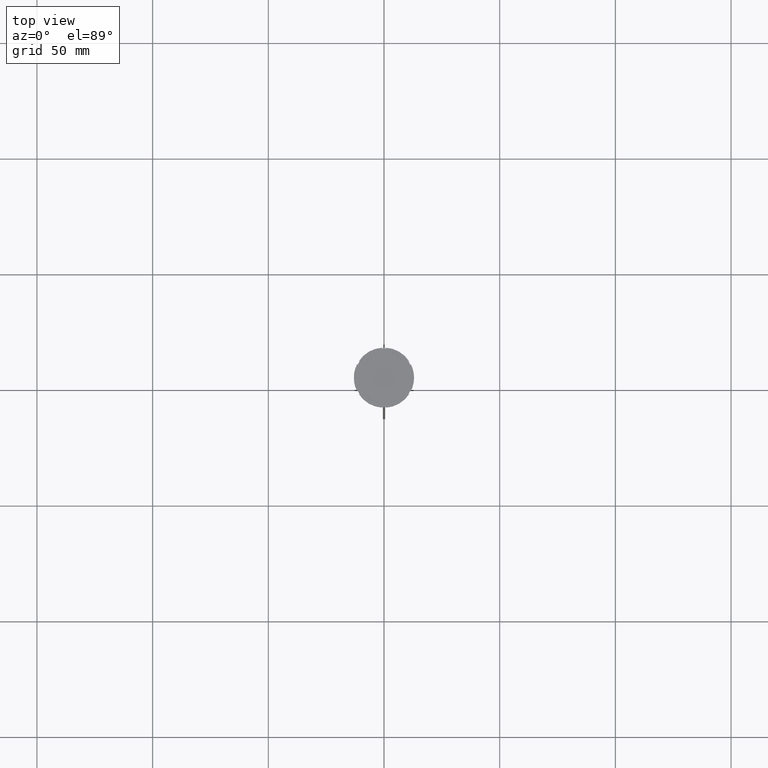
[diagram: clean part render]
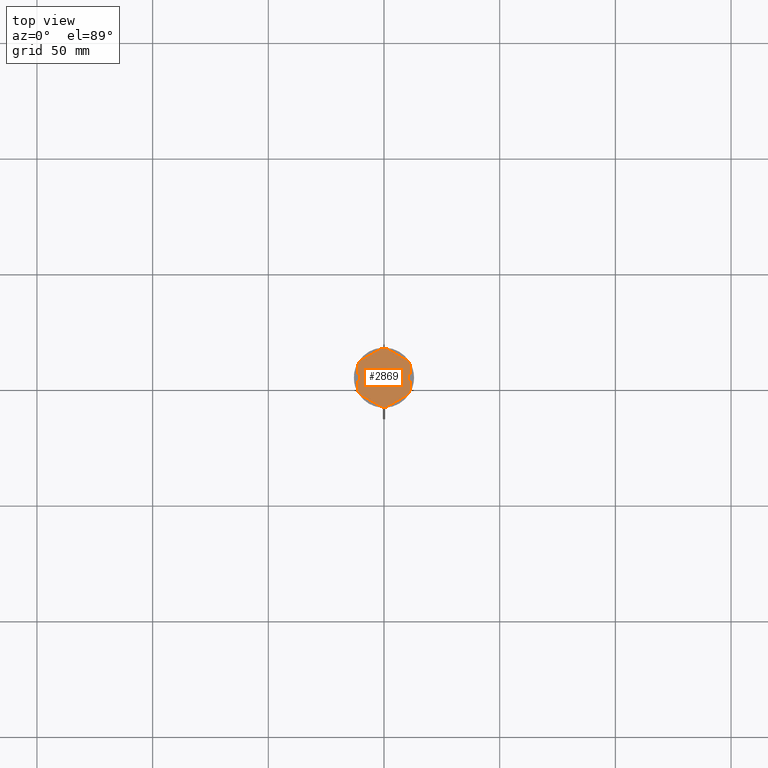
[diagram: same view with one face highlighted and labeled with its STEP entity id]
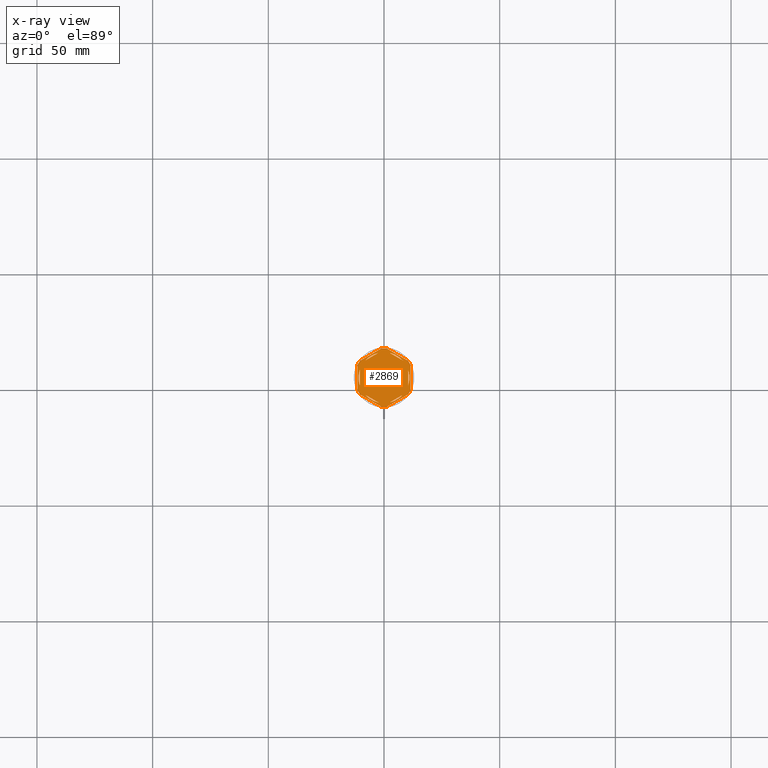
[diagram: x-ray of the same camera — body ghosted, the highlighted face saturated]
A machine part, top view. The second image highlights one B-rep face of the part: STEP entity #2869.
The next image is the same camera in x-ray: the body ghosted, the highlighted face saturated — about 0% of this face is hidden behind the body in this view.
In plain terms, the highlighted planar face has unit normal (0, 0, 1).
Its self-contained STEP definition (entity closure, byte-faithful):
#5 = CARTESIAN_POINT ( 'NONE',  ( -8.089454172900135021, 7.453907108661106840, -1.000000000000000888 ) ) ;
#15 = ORIENTED_EDGE ( 'NONE', *, *, #1972, .F. ) ;
#19 = CARTESIAN_POINT ( 'NONE',  ( 11.50000000000000000, 6.639528095680698350, -1.000000000000000000 ) ) ;
#20 = CIRCLE ( 'NONE', #1504, 12.69999999999999929 ) ;
#32 = DIRECTION ( 'NONE',  ( -0.8660254037844384856, 0.5000000000000002220, 0.000000000000000000 ) ) ;
#38 = DIRECTION ( 'NONE',  ( 1.000000000000000000, 0.000000000000000000, 0.000000000000000000 ) ) ;
#41 = CARTESIAN_POINT ( 'NONE',  ( -10.49999999999999822, 3.278719262151000624, -1.000000000000000888 ) ) ;
#43 = EDGE_CURVE ( 'NONE', #2061, #1750, #2221, .T. ) ;
#44 = PLANE ( 'NONE',  #640 ) ;
#72 = LINE ( 'NONE', #1167, #2638 ) ;
#76 = CARTESIAN_POINT ( 'NONE',  ( -11.00000000000000000, 0.000000000000000000, -1.000000000000000000 ) ) ;
#82 = ORIENTED_EDGE ( 'NONE', *, *, #1241, .F. ) ;
#92 = LINE ( 'NONE', #1192, #538 ) ;
#103 = ORIENTED_EDGE ( 'NONE', *, *, #1555, .T. ) ;
#134 = DIRECTION ( 'NONE',  ( -0.000000000000000000, -0.000000000000000000, -1.000000000000000000 ) ) ;
#150 = ORIENTED_EDGE ( 'NONE', *, *, #2612, .F. ) ;
#158 = VECTOR ( 'NONE', #1769, 999.9999999999998863 ) ;
#177 = CARTESIAN_POINT ( 'NONE',  ( 2.410545827099865868, -10.73262637081210791, -1.000000000000000888 ) ) ;
#182 = ORIENTED_EDGE ( 'NONE', *, *, #241, .T. ) ;
#184 = DIRECTION ( 'NONE',  ( 0.000000000000000000, 0.000000000000000000, 1.000000000000000000 ) ) ;
#218 = AXIS2_PLACEMENT_3D ( 'NONE', #1530, #184, #224 ) ;
#224 = DIRECTION ( 'NONE',  ( 1.000000000000000000, 0.000000000000000000, 0.000000000000000000 ) ) ;
#226 = ORIENTED_EDGE ( 'NONE', *, *, #694, .F. ) ;
#235 = LINE ( 'NONE', #1286, #1511 ) ;
#237 = DIRECTION ( 'NONE',  ( 1.000000000000000000, 0.000000000000000000, 0.000000000000000000 ) ) ;
#241 = EDGE_CURVE ( 'NONE', #271, #1206, #2643, .T. ) ;
#254 = DIRECTION ( 'NONE',  ( -0.000000000000000000, -0.000000000000000000, -1.000000000000000000 ) ) ;
#271 = VERTEX_POINT ( 'NONE', #2346 ) ;
#275 = DIRECTION ( 'NONE',  ( -0.8660254037844388186, 0.4999999999999997224, 0.000000000000000000 ) ) ;
#288 = CARTESIAN_POINT ( 'NONE',  ( 10.49999999999999467, -3.278719262151014835, -1.000000000000000888 ) ) ;
#294 = FACE_BOUND ( 'NONE', #2148, .T. ) ;
#315 = FACE_BOUND ( 'NONE', #1132, .T. ) ;
#334 = EDGE_CURVE ( 'NONE', #1498, #1441, #2113, .T. ) ;
#366 = CARTESIAN_POINT ( 'NONE',  ( -10.41690475583121334, -7.264853426459548125, -1.000000000000000000 ) ) ;
#386 = DIRECTION ( 'NONE',  ( 1.000000000000000000, 0.000000000000000000, 0.000000000000000000 ) ) ;
#393 = ORIENTED_EDGE ( 'NONE', *, *, #2509, .F. ) ;
#400 = VERTEX_POINT ( 'NONE', #876 ) ;
#440 = VECTOR ( 'NONE', #1135, 999.9999999999998863 ) ;
#459 = CARTESIAN_POINT ( 'NONE',  ( -10.49999999999999822, 6.062177826491068622, -1.000000000000000888 ) ) ;
#464 = VERTEX_POINT ( 'NONE', #2433 ) ;
#472 = LINE ( 'NONE', #2440, #1092 ) ;
#473 = LINE ( 'NONE', #19, #2261 ) ;
#479 = LINE ( 'NONE', #2074, #1977 ) ;
#488 = DIRECTION ( 'NONE',  ( 1.000000000000000000, 0.000000000000000000, 0.000000000000000000 ) ) ;
#491 = CIRCLE ( 'NONE', #2581, 11.00000000000000000 ) ;
#503 = CARTESIAN_POINT ( 'NONE',  ( -1.083095244168779780, -12.65373086058253982, -1.000000000000000000 ) ) ;
#517 = ORIENTED_EDGE ( 'NONE', *, *, #2632, .F. ) ;
#518 = DIRECTION ( 'NONE',  ( 1.000000000000000000, 0.000000000000000000, 0.000000000000000000 ) ) ;
#535 = AXIS2_PLACEMENT_3D ( 'NONE', #802, #1031, #756 ) ;
#538 = VECTOR ( 'NONE', #727, 1000.000000000000000 ) ;
#568 = CARTESIAN_POINT ( 'NONE',  ( 11.49999999999999822, -5.388877434122996135, -1.000000000000000000 ) ) ;
#581 = DIRECTION ( 'NONE',  ( 0.000000000000000000, 0.000000000000000000, 1.000000000000000000 ) ) ;
#618 = EDGE_LOOP ( 'NONE', ( #717, #1268 ) ) ;
#626 = ORIENTED_EDGE ( 'NONE', *, *, #43, .F. ) ;
#640 = AXIS2_PLACEMENT_3D ( 'NONE', #2710, #714, #1602 ) ;
#678 = VERTEX_POINT ( 'NONE', #568 ) ;
#687 = ORIENTED_EDGE ( 'NONE', *, *, #2684, .F. ) ;
#694 = EDGE_CURVE ( 'NONE', #1750, #2061, #491, .T. ) ;
#708 = ORIENTED_EDGE ( 'NONE', *, *, #2370, .F. ) ;
#714 = DIRECTION ( 'NONE',  ( 0.000000000000000000, 0.000000000000000000, 1.000000000000000000 ) ) ;
#717 = ORIENTED_EDGE ( 'NONE', *, *, #916, .F. ) ;
#720 = ORIENTED_EDGE ( 'NONE', *, *, #334, .F. ) ;
#724 = CIRCLE ( 'NONE', #1279, 11.00000000000000000 ) ;
#727 = DIRECTION ( 'NONE',  ( -1.430775808321104180E-16, -1.000000000000000000, 0.000000000000000000 ) ) ;
#732 = CARTESIAN_POINT ( 'NONE',  ( 10.41690475583121156, 7.264853426459550789, -1.000000000000000000 ) ) ;
#748 = FACE_BOUND ( 'NONE', #2616, .T. ) ;
#753 = ORIENTED_EDGE ( 'NONE', *, *, #2459, .F. ) ;
#756 = DIRECTION ( 'NONE',  ( 1.000000000000000000, 0.000000000000000000, 0.000000000000000000 ) ) ;
#773 = VECTOR ( 'NONE', #2232, 1000.000000000000000 ) ;
#775 = VERTEX_POINT ( 'NONE', #288 ) ;
#782 = DIRECTION ( 'NONE',  ( 0.8660254037844385966, 0.4999999999999999445, 0.000000000000000000 ) ) ;
#793 = EDGE_CURVE ( 'NONE', #1498, #1956, #473, .T. ) ;
#802 = CARTESIAN_POINT ( 'NONE',  ( 0.000000000000000000, 0.000000000000000000, -1.000000000000000000 ) ) ;
#821 = CARTESIAN_POINT ( 'NONE',  ( 0.000000000000000000, 0.000000000000000000, -1.000000000000000000 ) ) ;
#834 = DIRECTION ( 'NONE',  ( 1.000000000000000000, -1.776356839400250465E-14, 0.000000000000000000 ) ) ;
#857 = AXIS2_PLACEMENT_3D ( 'NONE', #1698, #134, #834 ) ;
#863 = VECTOR ( 'NONE', #2523, 1000.000000000000000 ) ;
#871 = VERTEX_POINT ( 'NONE', #76 ) ;
#873 = CARTESIAN_POINT ( 'NONE',  ( 0.000000000000000000, 0.000000000000000000, -1.000000000000000000 ) ) ;
#876 = CARTESIAN_POINT ( 'NONE',  ( 10.41690475583121867, -7.264853426459537467, -1.000000000000000000 ) ) ;
#891 = DIRECTION ( 'NONE',  ( -0.000000000000000000, -0.000000000000000000, -1.000000000000000000 ) ) ;
#916 = EDGE_CURVE ( 'NONE', #2208, #2458, #1000, .T. ) ;
#944 = LINE ( 'NONE', #2681, #440 ) ;
#950 = LINE ( 'NONE', #1838, #863 ) ;
#994 = LINE ( 'NONE', #1454, #2585 ) ;
#1000 = CIRCLE ( 'NONE', #1139, 11.00000000000000000 ) ;
#1006 = CIRCLE ( 'NONE', #1373, 11.00000000000000000 ) ;
#1025 = CARTESIAN_POINT ( 'NONE',  ( -2.410545827099876082, -10.73262637081210435, -1.000000000000000888 ) ) ;
#1031 = DIRECTION ( 'NONE',  ( 0.000000000000000000, 0.000000000000000000, 1.000000000000000000 ) ) ;
#1038 = EDGE_LOOP ( 'NONE', ( #517, #15 ) ) ;
#1051 = CIRCLE ( 'NONE', #2124, 12.69999999999999929 ) ;
#1073 = DIRECTION ( 'NONE',  ( 1.000000000000000000, 0.000000000000000000, 0.000000000000000000 ) ) ;
#1079 = CARTESIAN_POINT ( 'NONE',  ( 11.49999999999999822, 5.388877434122992582, -1.000000000000000000 ) ) ;
#1092 = VECTOR ( 'NONE', #2867, 1000.000000000000000 ) ;
#1115 = EDGE_CURVE ( 'NONE', #678, #1441, #950, .T. ) ;
#1132 = EDGE_LOOP ( 'NONE', ( #1867, #1844 ) ) ;
#1135 = DIRECTION ( 'NONE',  ( 0.8660254037844387076, -0.4999999999999999445, 0.000000000000000000 ) ) ;
#1139 = AXIS2_PLACEMENT_3D ( 'NONE', #1720, #2827, #1073 ) ;
#1148 = CARTESIAN_POINT ( 'NONE',  ( 0.000000000000000000, 0.000000000000000000, -1.000000000000000000 ) ) ;
#1155 = FACE_BOUND ( 'NONE', #618, .T. ) ;
#1167 = CARTESIAN_POINT ( 'NONE',  ( -10.49999999999999822, -6.062177826491068622, -1.000000000000000888 ) ) ;
#1169 = VERTEX_POINT ( 'NONE', #1428 ) ;
#1184 = CARTESIAN_POINT ( 'NONE',  ( 0.000000000000000000, 0.000000000000000000, -1.000000000000000000 ) ) ;
#1192 = CARTESIAN_POINT ( 'NONE',  ( 10.49999999999999289, -6.062177826491073063, -1.000000000000000888 ) ) ;
#1206 = VERTEX_POINT ( 'NONE', #2379 ) ;
#1217 = EDGE_LOOP ( 'NONE', ( #1443, #720, #2412, #150, #182, #2579, #2439, #82, #103, #1226, #2494, #753 ) ) ;
#1223 = DIRECTION ( 'NONE',  ( 0.000000000000000000, 0.000000000000000000, 1.000000000000000000 ) ) ;
#1226 = ORIENTED_EDGE ( 'NONE', *, *, #1843, .F. ) ;
#1228 = CIRCLE ( 'NONE', #535, 11.00000000000000000 ) ;
#1235 = DIRECTION ( 'NONE',  ( 1.000000000000000000, 0.000000000000000000, 0.000000000000000000 ) ) ;
#1240 = DIRECTION ( 'NONE',  ( -0.8660254037844385966, -0.5000000000000001110, 0.000000000000000000 ) ) ;
#1241 = EDGE_CURVE ( 'NONE', #2177, #2179, #1051, .T. ) ;
#1268 = ORIENTED_EDGE ( 'NONE', *, *, #1506, .F. ) ;
#1279 = AXIS2_PLACEMENT_3D ( 'NONE', #2146, #1947, #386 ) ;
#1286 = CARTESIAN_POINT ( 'NONE',  ( -1.734723475976807094E-15, 12.12435565298214080, -1.000000000000000888 ) ) ;
#1293 = VERTEX_POINT ( 'NONE', #1452 ) ;
#1363 = AXIS2_PLACEMENT_3D ( 'NONE', #1148, #2042, #38 ) ;
#1373 = AXIS2_PLACEMENT_3D ( 'NONE', #821, #1223, #2363 ) ;
#1403 = CARTESIAN_POINT ( 'NONE',  ( 1.083095244168781557, 12.65373086058254160, -1.000000000000000000 ) ) ;
#1409 = CARTESIAN_POINT ( 'NONE',  ( 1.083095244168774673, -12.65373086058253982, -1.000000000000000000 ) ) ;
#1428 = CARTESIAN_POINT ( 'NONE',  ( -2.410545827099867200, 10.73262637081210613, -1.000000000000000888 ) ) ;
#1438 = DIRECTION ( 'NONE',  ( -0.000000000000000000, -0.000000000000000000, -1.000000000000000000 ) ) ;
#1441 = VERTEX_POINT ( 'NONE', #1079 ) ;
#1443 = ORIENTED_EDGE ( 'NONE', *, *, #1115, .T. ) ;
#1452 = CARTESIAN_POINT ( 'NONE',  ( -10.49999999999999822, -3.278719262151000624, -1.000000000000000888 ) ) ;
#1454 = CARTESIAN_POINT ( 'NONE',  ( 5.612359739892467248E-18, -13.27905619136138959, -1.000000000000000000 ) ) ;
#1482 = VERTEX_POINT ( 'NONE', #2731 ) ;
#1486 = VERTEX_POINT ( 'NONE', #41 ) ;
#1498 = VERTEX_POINT ( 'NONE', #732 ) ;
#1504 = AXIS2_PLACEMENT_3D ( 'NONE', #873, #2224, #237 ) ;
#1506 = EDGE_CURVE ( 'NONE', #2458, #2208, #944, .T. ) ;
#1511 = VECTOR ( 'NONE', #1542, 1000.000000000000000 ) ;
#1518 = LINE ( 'NONE', #459, #773 ) ;
#1530 = CARTESIAN_POINT ( 'NONE',  ( 0.000000000000000000, 0.000000000000000000, -1.000000000000000000 ) ) ;
#1542 = DIRECTION ( 'NONE',  ( 0.8660254037844385966, 0.5000000000000001110, -0.000000000000000000 ) ) ;
#1555 = EDGE_CURVE ( 'NONE', #2177, #2878, #479, .T. ) ;
#1602 = DIRECTION ( 'NONE',  ( 1.000000000000000000, 0.000000000000000000, -0.000000000000000000 ) ) ;
#1630 = EDGE_CURVE ( 'NONE', #464, #2593, #1228, .T. ) ;
#1647 = CARTESIAN_POINT ( 'NONE',  ( 2.410545827099861871, 10.73262637081210791, -1.000000000000000888 ) ) ;
#1648 = AXIS2_PLACEMENT_3D ( 'NONE', #1184, #2082, #518 ) ;
#1651 = CIRCLE ( 'NONE', #218, 11.00000000000000000 ) ;
#1660 = EDGE_LOOP ( 'NONE', ( #226, #626 ) ) ;
#1698 = CARTESIAN_POINT ( 'NONE',  ( 0.000000000000000000, 0.000000000000000000, -1.000000000000000000 ) ) ;
#1720 = CARTESIAN_POINT ( 'NONE',  ( 0.000000000000000000, 0.000000000000000000, -1.000000000000000000 ) ) ;
#1750 = VERTEX_POINT ( 'NONE', #177 ) ;
#1769 = DIRECTION ( 'NONE',  ( -0.8660254037844387076, -0.4999999999999999445, 0.000000000000000000 ) ) ;
#1782 = CIRCLE ( 'NONE', #1648, 11.00000000000000000 ) ;
#1832 = DIRECTION ( 'NONE',  ( 0.8660254037844387076, -0.4999999999999997780, 0.000000000000000000 ) ) ;
#1838 = CARTESIAN_POINT ( 'NONE',  ( 11.49999999999999822, -6.639528095680694797, -1.000000000000000000 ) ) ;
#1843 = EDGE_CURVE ( 'NONE', #2805, #2878, #2255, .T. ) ;
#1844 = ORIENTED_EDGE ( 'NONE', *, *, #2696, .F. ) ;
#1867 = ORIENTED_EDGE ( 'NONE', *, *, #2882, .F. ) ;
#1947 = DIRECTION ( 'NONE',  ( 0.000000000000000000, 0.000000000000000000, 1.000000000000000000 ) ) ;
#1956 = VERTEX_POINT ( 'NONE', #1403 ) ;
#1972 = EDGE_CURVE ( 'NONE', #1482, #775, #92, .T. ) ;
#1977 = VECTOR ( 'NONE', #1832, 1000.000000000000227 ) ;
#1983 = AXIS2_PLACEMENT_3D ( 'NONE', #2629, #891, #2395 ) ;
#1991 = ORIENTED_EDGE ( 'NONE', *, *, #2758, .F. ) ;
#2005 = CARTESIAN_POINT ( 'NONE',  ( -2.602085213965210642E-15, -12.12435565298214080, -1.000000000000000888 ) ) ;
#2008 = CARTESIAN_POINT ( 'NONE',  ( 8.089454172900138573, 7.453907108661105063, -1.000000000000000888 ) ) ;
#2027 = CIRCLE ( 'NONE', #2538, 12.69999999999999929 ) ;
#2042 = DIRECTION ( 'NONE',  ( -0.000000000000000000, -0.000000000000000000, -1.000000000000000000 ) ) ;
#2047 = FACE_OUTER_BOUND ( 'NONE', #1217, .T. ) ;
#2061 = VERTEX_POINT ( 'NONE', #2567 ) ;
#2074 = CARTESIAN_POINT ( 'NONE',  ( -11.50000000000000000, -6.639528095680696573, -1.000000000000000000 ) ) ;
#2082 = DIRECTION ( 'NONE',  ( 0.000000000000000000, 0.000000000000000000, 1.000000000000000000 ) ) ;
#2113 = CIRCLE ( 'NONE', #857, 12.69999999999999929 ) ;
#2124 = AXIS2_PLACEMENT_3D ( 'NONE', #2144, #1438, #2801 ) ;
#2139 = CARTESIAN_POINT ( 'NONE',  ( -11.50000000000000000, -5.388877434122992582, -1.000000000000000000 ) ) ;
#2144 = CARTESIAN_POINT ( 'NONE',  ( 0.000000000000000000, 0.000000000000000000, -1.000000000000000000 ) ) ;
#2146 = CARTESIAN_POINT ( 'NONE',  ( 0.000000000000000000, 0.000000000000000000, -1.000000000000000000 ) ) ;
#2148 = EDGE_LOOP ( 'NONE', ( #2663, #1991 ) ) ;
#2173 = CARTESIAN_POINT ( 'NONE',  ( 0.000000000000000000, 13.27905619136138959, -1.000000000000000000 ) ) ;
#2177 = VERTEX_POINT ( 'NONE', #366 ) ;
#2179 = VERTEX_POINT ( 'NONE', #2139 ) ;
#2199 = EDGE_CURVE ( 'NONE', #2371, #1206, #20, .T. ) ;
#2208 = VERTEX_POINT ( 'NONE', #2008 ) ;
#2221 = LINE ( 'NONE', #2005, #158 ) ;
#2224 = DIRECTION ( 'NONE',  ( -0.000000000000000000, -0.000000000000000000, -1.000000000000000000 ) ) ;
#2227 = VERTEX_POINT ( 'NONE', #5 ) ;
#2232 = DIRECTION ( 'NONE',  ( 0.000000000000000000, 1.000000000000000000, 0.000000000000000000 ) ) ;
#2250 = CARTESIAN_POINT ( 'NONE',  ( 0.000000000000000000, 0.000000000000000000, -1.000000000000000000 ) ) ;
#2255 = CIRCLE ( 'NONE', #1363, 12.69999999999999929 ) ;
#2260 = CIRCLE ( 'NONE', #1983, 12.69999999999999929 ) ;
#2261 = VECTOR ( 'NONE', #275, 1000.000000000000000 ) ;
#2274 = EDGE_CURVE ( 'NONE', #2371, #2179, #472, .T. ) ;
#2293 = FACE_BOUND ( 'NONE', #1660, .T. ) ;
#2342 = CARTESIAN_POINT ( 'NONE',  ( 0.000000000000000000, 0.000000000000000000, -1.000000000000000000 ) ) ;
#2346 = CARTESIAN_POINT ( 'NONE',  ( -1.083095244168783333, 12.65373086058254160, -1.000000000000000000 ) ) ;
#2363 = DIRECTION ( 'NONE',  ( 1.000000000000000000, 0.000000000000000000, 0.000000000000000000 ) ) ;
#2370 = EDGE_CURVE ( 'NONE', #1486, #871, #1782, .T. ) ;
#2371 = VERTEX_POINT ( 'NONE', #2749 ) ;
#2379 = CARTESIAN_POINT ( 'NONE',  ( -10.41690475583121689, 7.264853426459546348, -1.000000000000000000 ) ) ;
#2395 = DIRECTION ( 'NONE',  ( 1.000000000000000000, 1.243449787580175325E-14, 0.000000000000000000 ) ) ;
#2412 = ORIENTED_EDGE ( 'NONE', *, *, #793, .T. ) ;
#2433 = CARTESIAN_POINT ( 'NONE',  ( -8.089454172900133244, -7.453907108661111280, -1.000000000000000888 ) ) ;
#2439 = ORIENTED_EDGE ( 'NONE', *, *, #2274, .T. ) ;
#2440 = CARTESIAN_POINT ( 'NONE',  ( -11.50000000000000000, 6.639528095680691244, -1.000000000000000000 ) ) ;
#2458 = VERTEX_POINT ( 'NONE', #1647 ) ;
#2459 = EDGE_CURVE ( 'NONE', #678, #400, #2027, .T. ) ;
#2474 = FACE_BOUND ( 'NONE', #1038, .T. ) ;
#2494 = ORIENTED_EDGE ( 'NONE', *, *, #2569, .T. ) ;
#2509 = EDGE_CURVE ( 'NONE', #871, #1293, #724, .T. ) ;
#2523 = DIRECTION ( 'NONE',  ( 1.306360520641008153E-16, 1.000000000000000000, 0.000000000000000000 ) ) ;
#2538 = AXIS2_PLACEMENT_3D ( 'NONE', #2250, #254, #488 ) ;
#2567 = CARTESIAN_POINT ( 'NONE',  ( 8.089454172900135021, -7.453907108661109504, -1.000000000000000888 ) ) ;
#2569 = EDGE_CURVE ( 'NONE', #2805, #400, #994, .T. ) ;
#2572 = VECTOR ( 'NONE', #1240, 1000.000000000000114 ) ;
#2579 = ORIENTED_EDGE ( 'NONE', *, *, #2199, .F. ) ;
#2581 = AXIS2_PLACEMENT_3D ( 'NONE', #2342, #581, #1235 ) ;
#2585 = VECTOR ( 'NONE', #782, 1000.000000000000114 ) ;
#2593 = VERTEX_POINT ( 'NONE', #1025 ) ;
#2612 = EDGE_CURVE ( 'NONE', #271, #1956, #2260, .T. ) ;
#2616 = EDGE_LOOP ( 'NONE', ( #708, #687, #393 ) ) ;
#2629 = CARTESIAN_POINT ( 'NONE',  ( 0.000000000000000000, 0.000000000000000000, -1.000000000000000000 ) ) ;
#2632 = EDGE_CURVE ( 'NONE', #775, #1482, #1651, .T. ) ;
#2638 = VECTOR ( 'NONE', #32, 1000.000000000000000 ) ;
#2643 = LINE ( 'NONE', #2173, #2572 ) ;
#2663 = ORIENTED_EDGE ( 'NONE', *, *, #1630, .F. ) ;
#2681 = CARTESIAN_POINT ( 'NONE',  ( 10.49999999999999467, 6.062177826491072175, -1.000000000000000888 ) ) ;
#2684 = EDGE_CURVE ( 'NONE', #1293, #1486, #1518, .T. ) ;
#2696 = EDGE_CURVE ( 'NONE', #2227, #1169, #235, .T. ) ;
#2710 = CARTESIAN_POINT ( 'NONE',  ( 0.000000000000000000, 0.000000000000000000, -1.000000000000000000 ) ) ;
#2731 = CARTESIAN_POINT ( 'NONE',  ( 10.49999999999999467, 3.278719262151012170, -1.000000000000000888 ) ) ;
#2749 = CARTESIAN_POINT ( 'NONE',  ( -11.50000000000000000, 5.388877434122992582, -1.000000000000000000 ) ) ;
#2758 = EDGE_CURVE ( 'NONE', #2593, #464, #72, .T. ) ;
#2801 = DIRECTION ( 'NONE',  ( 1.000000000000000000, 7.105427357601001859E-15, 0.000000000000000000 ) ) ;
#2805 = VERTEX_POINT ( 'NONE', #1409 ) ;
#2827 = DIRECTION ( 'NONE',  ( 0.000000000000000000, 0.000000000000000000, 1.000000000000000000 ) ) ;
#2867 = DIRECTION ( 'NONE',  ( 0.000000000000000000, -1.000000000000000000, 0.000000000000000000 ) ) ;
#2869 = ADVANCED_FACE ( 'NONE', ( #1155, #2474, #2293, #294, #748, #315, #2047 ), #44, .T. ) ;
#2878 = VERTEX_POINT ( 'NONE', #503 ) ;
#2882 = EDGE_CURVE ( 'NONE', #1169, #2227, #1006, .T. ) ;